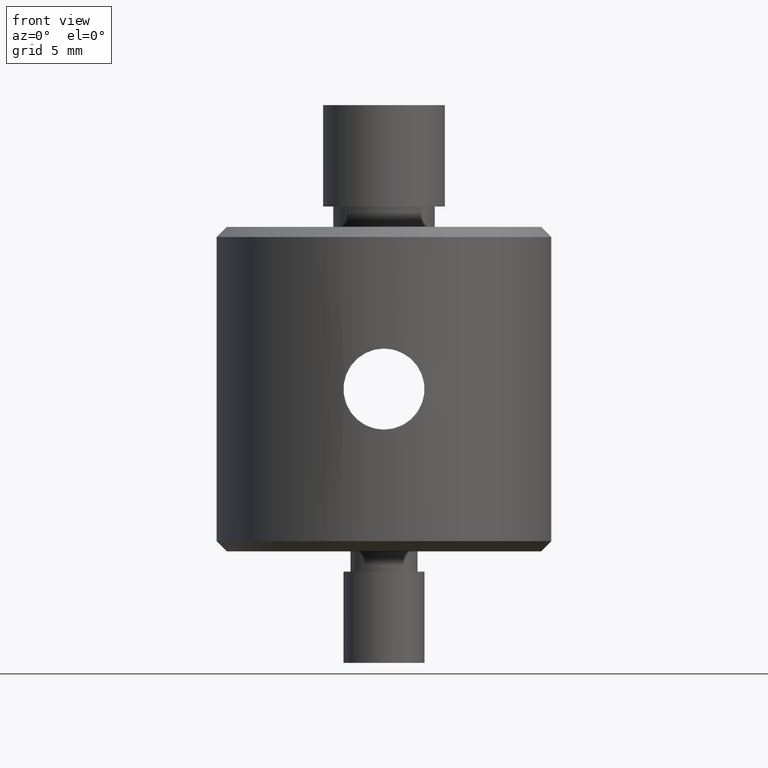
[diagram: clean part render]
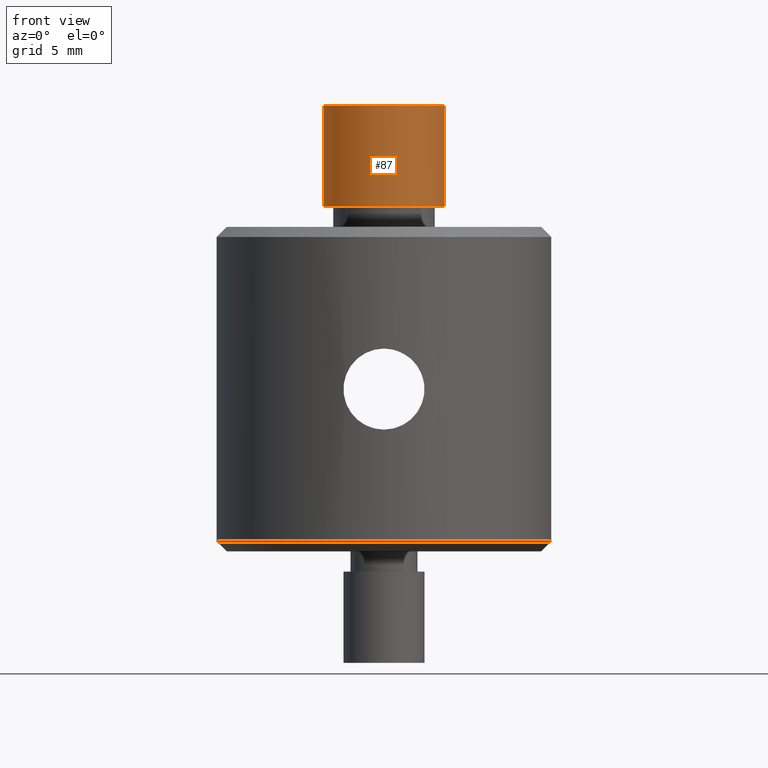
[diagram: same view with one face highlighted and labeled with its STEP entity id]
A machine part, front view. The second image highlights one B-rep face of the part: STEP entity #87.
In plain terms, the highlighted cylindrical surface (partial cylindrical patch) has radius 3 mm, axis along (-0, -0, 1).
Its self-contained STEP definition (entity closure, byte-faithful):
#24 = CARTESIAN_POINT ( 'NONE',  ( 0.0000000000000000000, 0.0000000000000000000, 8.000000000000000000 ) ) ;
#59 = CARTESIAN_POINT ( 'NONE',  ( -3.000000000000000400, 3.673940397442060400E-016, 8.000000000000000000 ) ) ;
#87 = ADVANCED_FACE ( 'NONE', ( #297 ), #622, .T. ) ;
#109 = VERTEX_POINT ( 'NONE', #356 ) ;
#115 = AXIS2_PLACEMENT_3D ( 'NONE', #24, #397, #565 ) ;
#155 = CARTESIAN_POINT ( 'NONE',  ( 0.0000000000000000000, 0.0000000000000000000, 9.000000000000001800 ) ) ;
#179 = EDGE_CURVE ( 'NONE', #593, #719, #318, .T. ) ;
#180 = CARTESIAN_POINT ( 'NONE',  ( 3.000000000000000400, 0.0000000000000000000, 14.00000000000000000 ) ) ;
#183 = ORIENTED_EDGE ( 'NONE', *, *, #399, .F. ) ;
#215 = DIRECTION ( 'NONE',  ( -0.0000000000000000000, -0.0000000000000000000, -1.000000000000000000 ) ) ;
#261 = DIRECTION ( 'NONE',  ( -0.0000000000000000000, -0.0000000000000000000, 1.000000000000000000 ) ) ;
#297 = FACE_OUTER_BOUND ( 'NONE', #664, .T. ) ;
#307 = LINE ( 'NONE', #59, #763 ) ;
#317 = CIRCLE ( 'NONE', #707, 3.000000000000000400 ) ;
#318 = CIRCLE ( 'NONE', #573, 3.000000000000000400 ) ;
#356 = CARTESIAN_POINT ( 'NONE',  ( -3.000000000000000400, 3.673940397442060400E-016, 9.000000000000001800 ) ) ;
#366 = DIRECTION ( 'NONE',  ( -0.0000000000000000000, -0.0000000000000000000, 1.000000000000000000 ) ) ;
#373 = ORIENTED_EDGE ( 'NONE', *, *, #492, .T. ) ;
#397 = DIRECTION ( 'NONE',  ( -0.0000000000000000000, -0.0000000000000000000, 1.000000000000000000 ) ) ;
#399 = EDGE_CURVE ( 'NONE', #569, #109, #317, .T. ) ;
#401 = DIRECTION ( 'NONE',  ( 1.000000000000000000, 0.0000000000000000000, 0.0000000000000000000 ) ) ;
#441 = VECTOR ( 'NONE', #366, 1000.000000000000000 ) ;
#448 = DIRECTION ( 'NONE',  ( 1.000000000000000000, 0.0000000000000000000, 0.0000000000000000000 ) ) ;
#492 = EDGE_CURVE ( 'NONE', #569, #719, #757, .T. ) ;
#508 = CARTESIAN_POINT ( 'NONE',  ( 3.000000000000000400, 0.0000000000000000000, 9.000000000000001800 ) ) ;
#525 = EDGE_CURVE ( 'NONE', #109, #593, #307, .T. ) ;
#564 = CARTESIAN_POINT ( 'NONE',  ( -3.000000000000000400, 3.673940397442060400E-016, 14.00000000000000000 ) ) ;
#565 = DIRECTION ( 'NONE',  ( 1.000000000000000000, 0.0000000000000000000, 0.0000000000000000000 ) ) ;
#569 = VERTEX_POINT ( 'NONE', #508 ) ;
#573 = AXIS2_PLACEMENT_3D ( 'NONE', #645, #759, #401 ) ;
#593 = VERTEX_POINT ( 'NONE', #564 ) ;
#622 = CYLINDRICAL_SURFACE ( 'NONE', #115, 3.000000000000000400 ) ;
#633 = ORIENTED_EDGE ( 'NONE', *, *, #525, .F. ) ;
#645 = CARTESIAN_POINT ( 'NONE',  ( 0.0000000000000000000, 0.0000000000000000000, 14.00000000000000000 ) ) ;
#662 = CARTESIAN_POINT ( 'NONE',  ( 3.000000000000000400, 0.0000000000000000000, 8.000000000000000000 ) ) ;
#664 = EDGE_LOOP ( 'NONE', ( #633, #183, #373, #703 ) ) ;
#703 = ORIENTED_EDGE ( 'NONE', *, *, #179, .F. ) ;
#707 = AXIS2_PLACEMENT_3D ( 'NONE', #155, #215, #448 ) ;
#719 = VERTEX_POINT ( 'NONE', #180 ) ;
#757 = LINE ( 'NONE', #662, #441 ) ;
#759 = DIRECTION ( 'NONE',  ( 0.0000000000000000000, 0.0000000000000000000, 1.000000000000000000 ) ) ;
#763 = VECTOR ( 'NONE', #261, 1000.000000000000000 ) ;